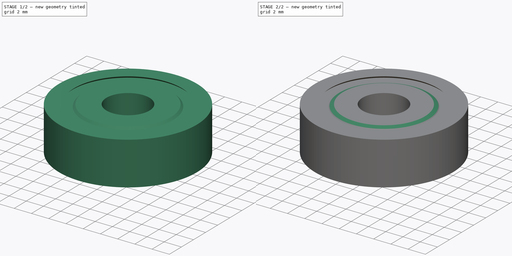
[diagram: build sequence overview — one tinted view per stage of 2, left to right]
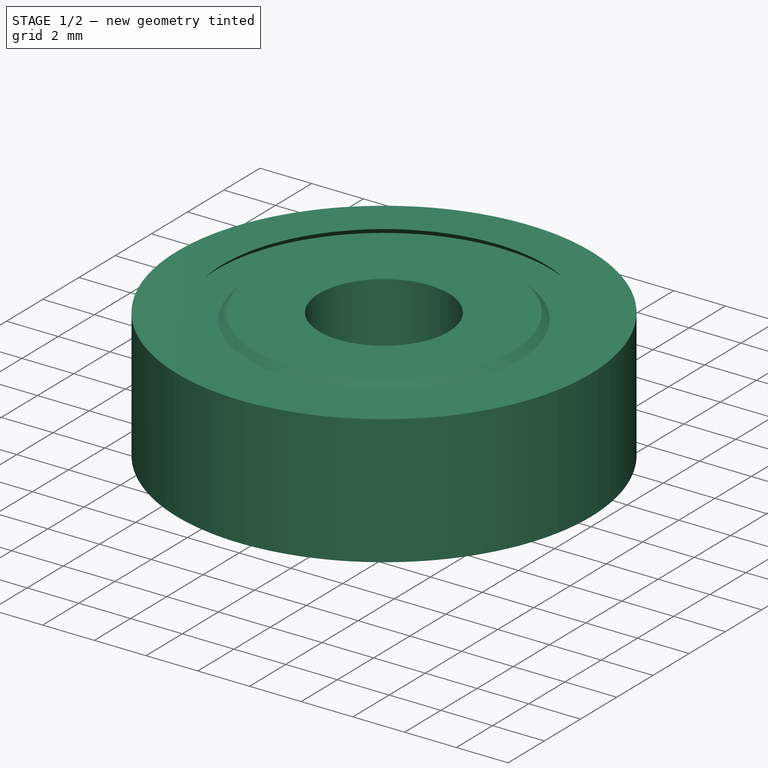
[diagram: stage 1 of 2 — iso view after this stage's code; geometry added in this stage tinted green]
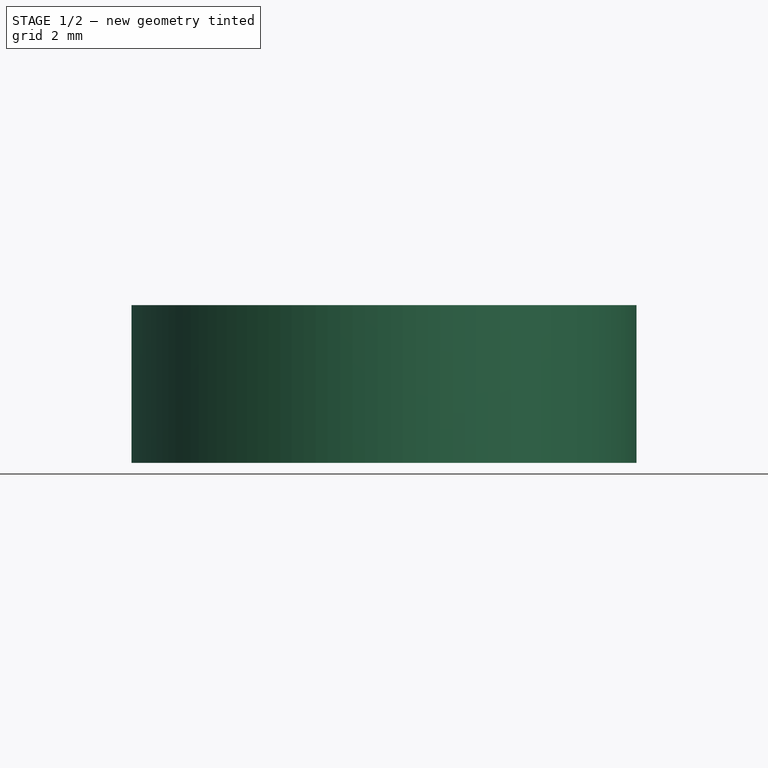
[diagram: stage 1 of 2 — front view after this stage's code; geometry added in this stage tinted green]
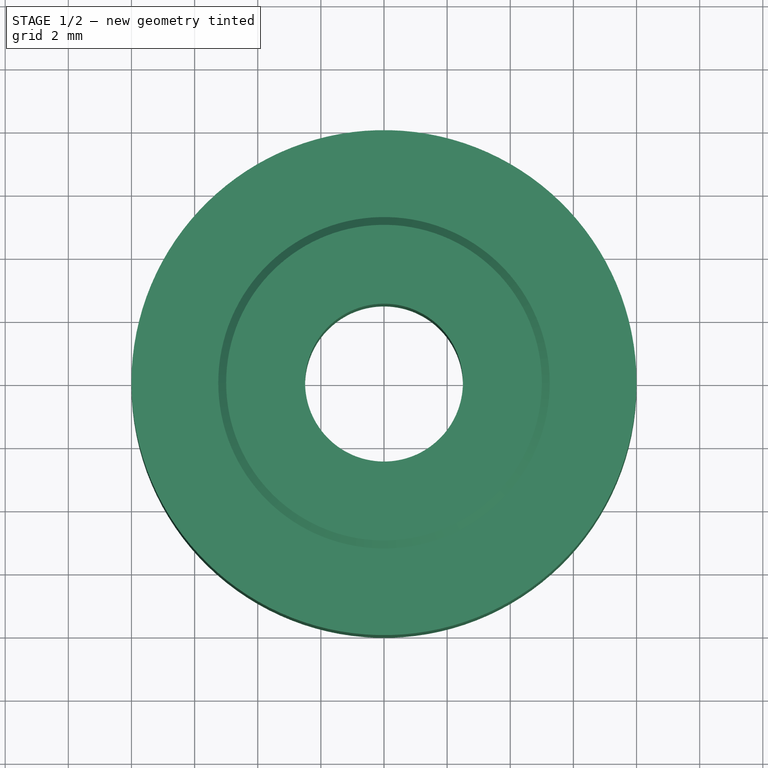
[diagram: stage 1 of 2 — top view after this stage's code; geometry added in this stage tinted green]
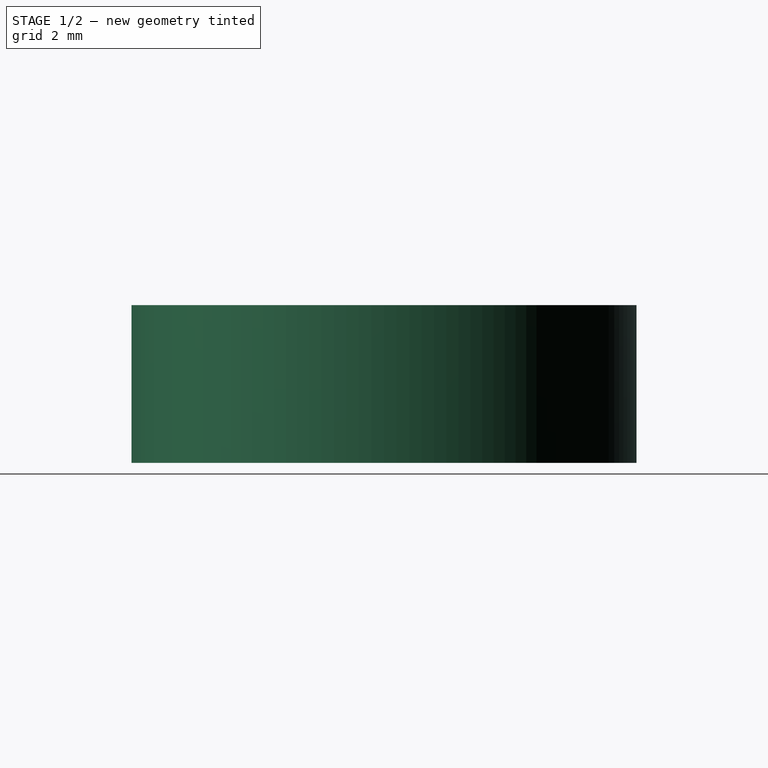
[diagram: stage 1 of 2 — right view after this stage's code; geometry added in this stage tinted green]
FCSTD DOCUMENT  (FreeCAD 0.20RUnknown)
Label: Bearing
License: All rights reserved
LicenseURL: http://en.wikipedia.org/wiki/All_rights_reserved
objects: PartDesign::Body×1, Sketcher::SketchObject×1, PartDesign::Revolution×1, PartDesign::Chamfer×1
note: 6 computed .brp shape members not serialized (recipe doc carries the construction recipe); baked Part::Feature solids carry a one-line shape summary decoded from their .brp

FEATURE [PartDesign::Body] Body  label="Bearing"
  Origin = -> Origin
FEATURE [Sketcher::SketchObject] Sketch
  FullyConstrained = true
  MapMode = 5
  Placement = pos=(0,0,0) rot=(1,0,0;1.5708rad)
  sketch-geometry (12):
    g0: LineSegment StartX=2.5 StartY=-2.5 StartZ=0 EndX=5 EndY=-2.5 EndZ=0
    g1: LineSegment StartX=8 StartY=-2.5 StartZ=0 EndX=8 EndY=2.5 EndZ=0
    g2: LineSegment StartX=8 StartY=2.5 StartZ=0 EndX=6.25 EndY=2.5 EndZ=0
    g3: LineSegment StartX=2.5 StartY=2.5 StartZ=0 EndX=2.5 EndY=-2.5 EndZ=0
    g4: LineSegment StartX=5 StartY=2.5 StartZ=0 EndX=5.25 EndY=2.25 EndZ=0
    g5: LineSegment StartX=5.25 StartY=2.25 StartZ=0 EndX=6.5 EndY=2.25 EndZ=0
    g6: LineSegment StartX=6.5 StartY=2.25 StartZ=0 EndX=6.25 EndY=2.5 EndZ=0
    g7: LineSegment StartX=5 StartY=-2.5 StartZ=0 EndX=5.25 EndY=-2.25 EndZ=0
    g8: LineSegment StartX=5.25 StartY=-2.25 StartZ=0 EndX=6 EndY=-2.25 EndZ=0
    g9: LineSegment StartX=6 StartY=-2.25 StartZ=0 EndX=6.25 EndY=-2.5 EndZ=0
    g10: LineSegment StartX=5 StartY=2.5 StartZ=0 EndX=2.5 EndY=2.5 EndZ=0
    g11: LineSegment StartX=6.25 StartY=-2.5 StartZ=0 EndX=8 EndY=-2.5 EndZ=0
  constraints (33):
    c: Coincident(g11,g1)
    c: Coincident(g1,g2)
    c: Coincident(g10,g3)
    c: Coincident(g3,g0)
    c: Horizontal(g0)
    c: Horizontal(g2)
    c: Vertical(g1)
    c: DistanceY(g1) = 5
    c: DistanceX(g0) = 2.5
    c: DistanceX(g11) = 8
    c: Coincident(g4,g5)
    c: Horizontal(g5)
    c: Coincident(g5,g6)
    c: Coincident(g7,g8)
    c: Horizontal(g8)
    c: Coincident(g8,g9)
    c: Coincident(g2,g6)
    c: Coincident(g10,g4)
    c: Tangent(g2,g10)
    c: Coincident(g0,g7)
    c: Coincident(g11,g9)
    c: Tangent(g0,g11)
    c: Equal(g4,g6)
    c: Equal(g6,g7)
    c: Angle(g10,g4) = 2.35619
    c: DistanceX(g2) = -1.75
    c: DistanceX(g10) = -2.5
    c: Equal(g0,g10)
    c: Equal(g11,g2)
    c: Equal(g9,g7)
    c: Parallel(g9,g4)
    c: DistanceY(g5,g1) = 0.25
    c: Symmetric(g0,g3,g-1)
FEATURE [PartDesign::Revolution] Revolution
  AllowMultiFace = false
  Angle = 360
  Axis = (0,2e-16,1)
  Base = (0,0,0)
  Placement = pos=(0,0,0) rot=(1,0,0;1.5708rad)
  Profile = -> Sketch
  ReferenceAxis = -> Sketch [V_Axis]
  Refine = true
  Reversed = true
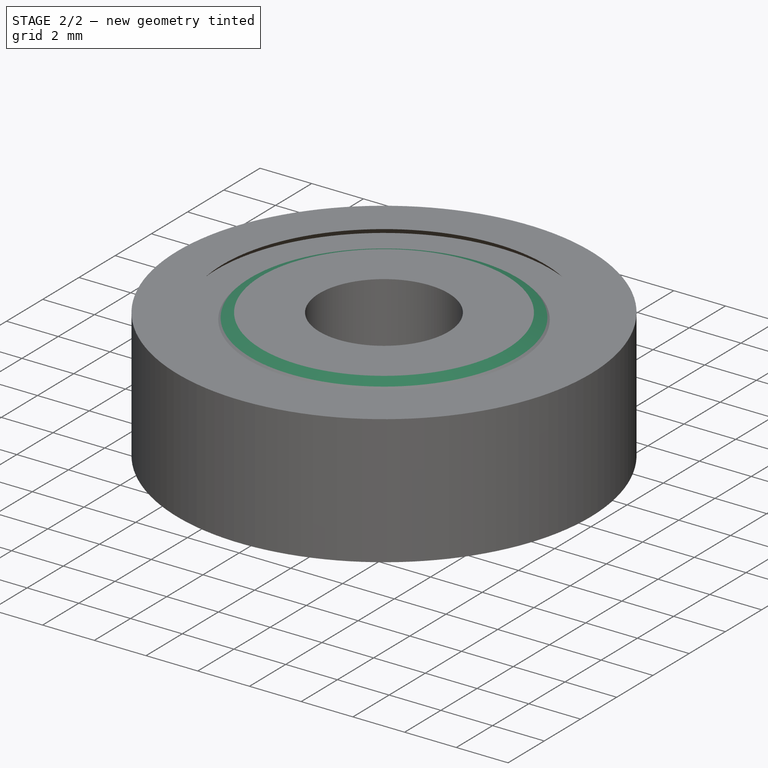
[diagram: stage 2 of 2 — iso view after this stage's code; geometry added in this stage tinted green]
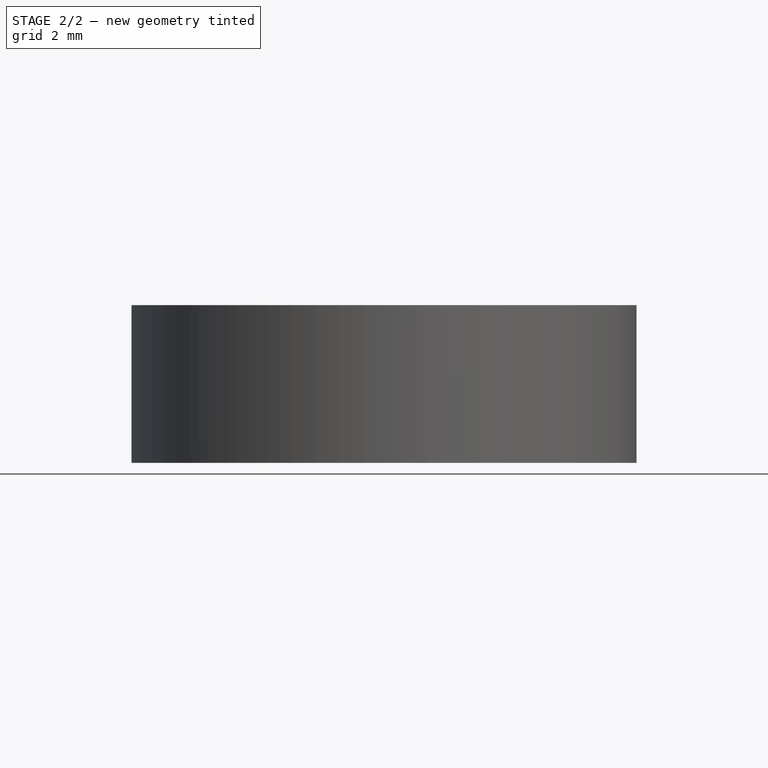
[diagram: stage 2 of 2 — front view after this stage's code; geometry added in this stage tinted green]
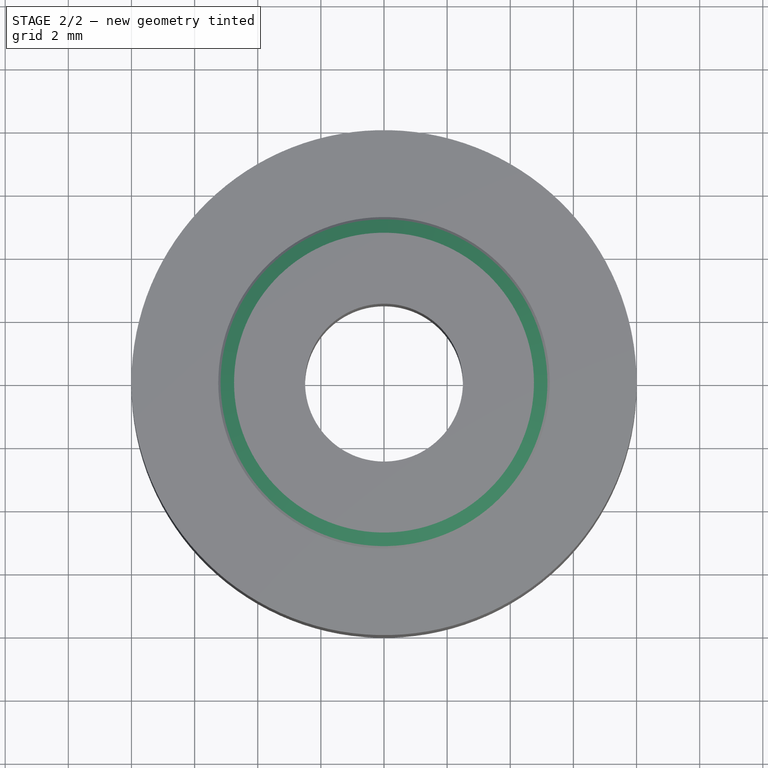
[diagram: stage 2 of 2 — top view after this stage's code; geometry added in this stage tinted green]
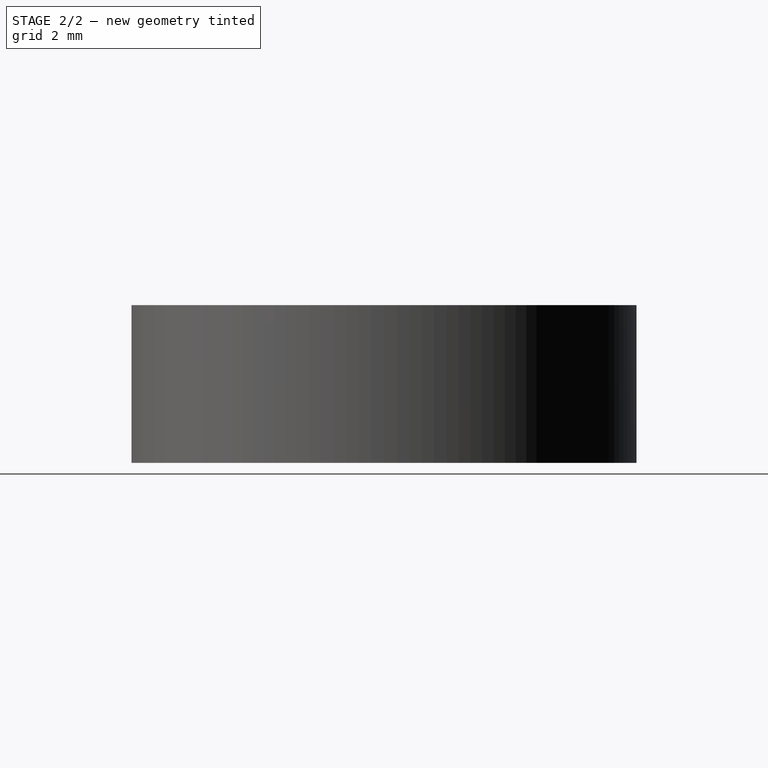
[diagram: stage 2 of 2 — right view after this stage's code; geometry added in this stage tinted green]
FEATURE [PartDesign::Chamfer] Chamfer
  Angle = 45
  Base = -> Revolution [Edge1,Edge3]
  ChamferType = 0
  FlipDirection = false
  Placement = pos=(0,0,0) rot=(1,0,0;1.5708rad)
  Refine = true
  Size = 0.25
  Size2 = 1
  SupportTransform = false
  UseAllEdges = false
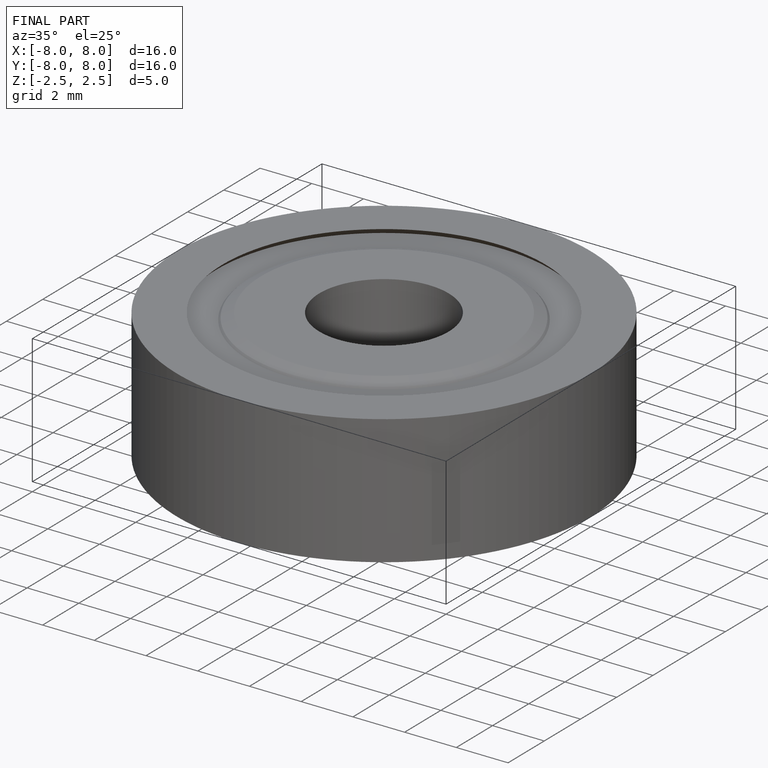
[diagram: finished part — iso view with bounding-box wireframe]
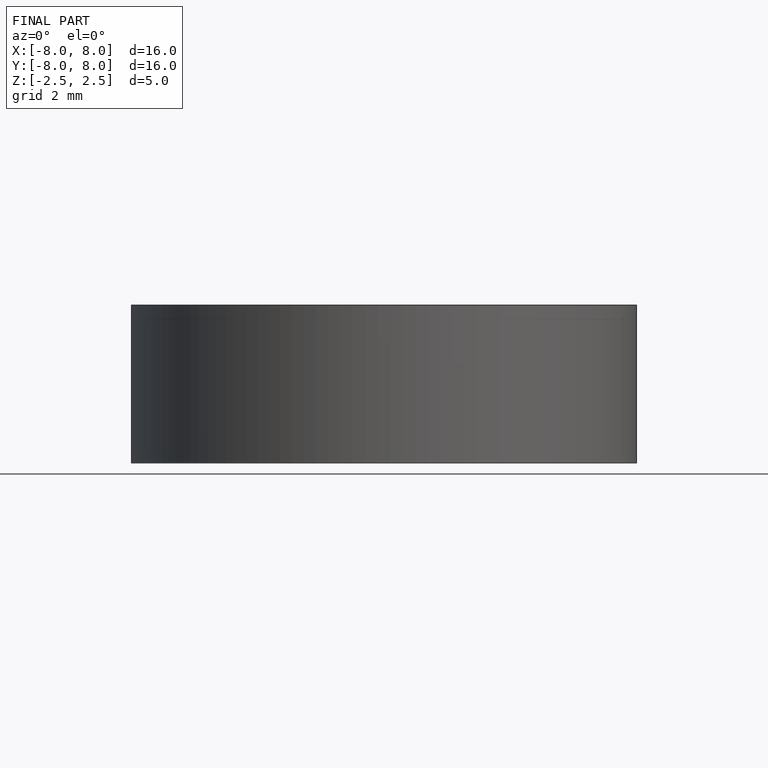
[diagram: finished part — front view with bounding-box wireframe]
